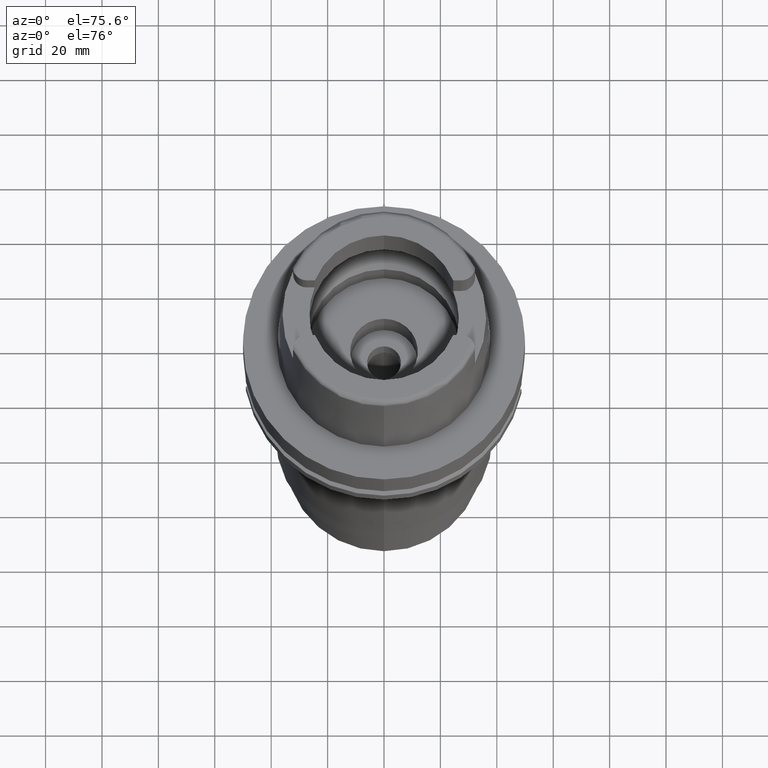
[diagram: clean part render]
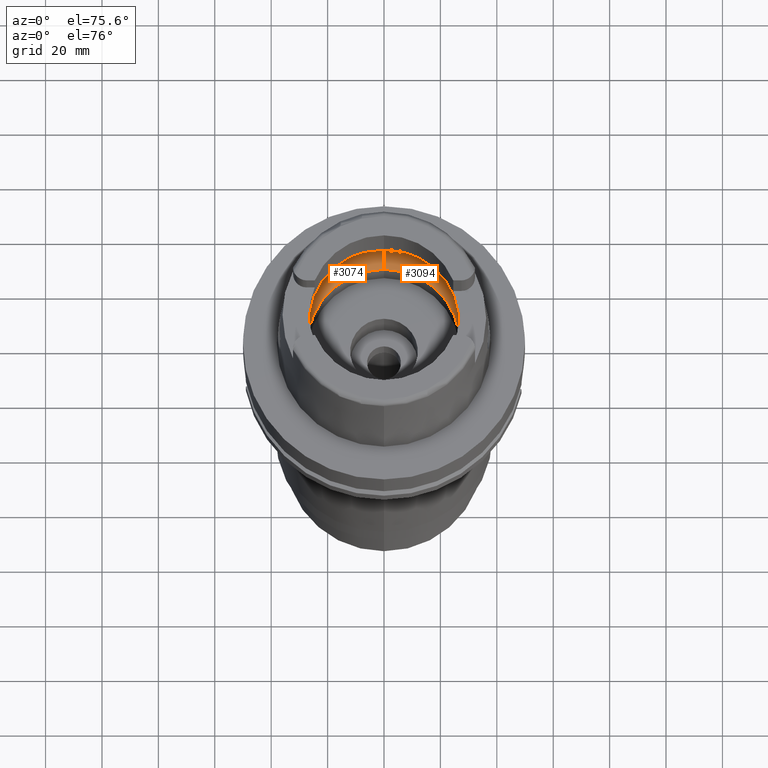
[diagram: same view with one multi-face feature highlighted, each face labeled with its STEP entity id]
A machine part, auxiliary view. The highlighted faces form ONE feature: a constant-radius fillet chain: 2 tangent blend faces with common blend radius 12 mm. The faces share edges in the B-rep.
Their STEP definitions:
[1] entity #3074 (Torus):
#580=CARTESIAN_POINT('',(-3.140918884336E1,-2.390158196044E0,9.496624327026E0));
#624=CARTESIAN_POINT('',(-3.140918884336E1,-2.390158196044E0,9.496624327026E0));
#625=CARTESIAN_POINT('',(-3.142817545704E1,-2.140654152533E0,9.388262810390E0));
#626=CARTESIAN_POINT('',(-3.145843235401E1,-1.626121130666E0,9.205188134635E0));
#627=CARTESIAN_POINT('',(-3.148416659375E1,-8.216262390445E-1,
9.037606438216E0));
#628=CARTESIAN_POINT('',(-3.148971910754E1,-2.740811097498E-1,9.E0));
#629=CARTESIAN_POINT('',(-3.148971910754E1,0.E0,9.E0));
#634=CARTESIAN_POINT('',(-3.148971910754E1,0.E0,9.E0));
#635=CARTESIAN_POINT('',(-3.148971910754E1,2.740813517952E-1,9.E0));
#636=CARTESIAN_POINT('',(-3.148416661469E1,8.216269012394E-1,9.037606318337E0));
#637=CARTESIAN_POINT('',(-3.145843209623E1,1.626127188331E0,9.205189758010E0));
#638=CARTESIAN_POINT('',(-3.142817526839E1,2.140656631637E0,9.388263887083E0));
#639=CARTESIAN_POINT('',(-3.140918884336E1,2.390158196044E0,9.496624327026E0));
#644=CARTESIAN_POINT('',(0.E0,0.E0,9.496624327026E0));
#645=DIRECTION('',(0.E0,0.E0,-1.E0));
#646=DIRECTION('',(-9.971171061384E-1,7.587803796965E-2,0.E0));
#647=AXIS2_PLACEMENT_3D('',#644,#645,#646);
#652=CARTESIAN_POINT('',(0.E0,0.E0,4.993178413026E-2));
#653=DIRECTION('',(0.E0,0.E0,1.E0));
#654=DIRECTION('',(0.E0,1.E0,0.E0));
#655=AXIS2_PLACEMENT_3D('',#652,#653,#654);
#660=CARTESIAN_POINT('',(0.E0,-1.95E1,9.496624327026E0));
#661=DIRECTION('',(-1.E0,0.E0,0.E0));
#662=DIRECTION('',(0.E0,-6.166666666667E-1,-7.872243785746E-1));
#663=AXIS2_PLACEMENT_3D('',#660,#661,#662);
#668=CARTESIAN_POINT('',(0.E0,0.E0,9.496624327026E0));
#669=DIRECTION('',(0.E0,0.E0,-1.E0));
#670=DIRECTION('',(0.E0,-1.E0,0.E0));
#671=AXIS2_PLACEMENT_3D('',#668,#669,#670);
#702=CARTESIAN_POINT('',(0.E0,1.95E1,9.496624327026E0));
#703=DIRECTION('',(1.E0,0.E0,0.E0));
#704=DIRECTION('',(0.E0,6.166666666667E-1,-7.872243785746E-1));
#705=AXIS2_PLACEMENT_3D('',#702,#703,#704);
#2416=VERTEX_POINT('',#580);
#2417=CARTESIAN_POINT('',(0.E0,-3.15E1,9.496624327026E0));
#2418=VERTEX_POINT('',#2417);
#2419=CARTESIAN_POINT('',(0.E0,3.15E1,9.496624327026E0));
#2420=VERTEX_POINT('',#2419);
#2421=CARTESIAN_POINT('',(-3.140918884336E1,2.390158196044E0,9.496624327026E0));
#2422=VERTEX_POINT('',#2421);
#2423=CARTESIAN_POINT('',(-3.148971910754E1,0.E0,9.E0));
#2424=VERTEX_POINT('',#2423);
#2429=CARTESIAN_POINT('',(0.E0,2.69E1,4.993178413025E-2));
#2430=VERTEX_POINT('',#2429);
#2431=CARTESIAN_POINT('',(0.E0,-2.69E1,4.993178413026E-2));
#2432=VERTEX_POINT('',#2431);
#3057=CARTESIAN_POINT('',(0.E0,0.E0,9.496624327026E0));
#3058=DIRECTION('',(0.E0,0.E0,1.E0));
#3059=DIRECTION('',(0.E0,1.E0,0.E0));
#3060=AXIS2_PLACEMENT_3D('',#3057,#3058,#3059);
#3061=TOROIDAL_SURFACE('',#3060,1.95E1,1.2E1);
#3062=ORIENTED_EDGE('',*,*,#3038,.T.);
#3063=ORIENTED_EDGE('',*,*,#3049,.T.);
#3064=ORIENTED_EDGE('',*,*,#3020,.T.);
#3066=ORIENTED_EDGE('',*,*,#3065,.F.);
#3068=ORIENTED_EDGE('',*,*,#3067,.T.);
#3070=ORIENTED_EDGE('',*,*,#3069,.T.);
#3071=ORIENTED_EDGE('',*,*,#3013,.T.);
#3072=EDGE_LOOP('',(#3062,#3063,#3064,#3066,#3068,#3070,#3071));
#3073=FACE_OUTER_BOUND('',#3072,.F.);
#630=B_SPLINE_CURVE_WITH_KNOTS('',3,(#624,#625,#626,#627,#628,#629),
.UNSPECIFIED.,.F.,.F.,(4,1,1,4),(0.E0,3.333333333333E-1,6.666666666667E-1,1.E0),
.UNSPECIFIED.);
#640=B_SPLINE_CURVE_WITH_KNOTS('',3,(#634,#635,#636,#637,#638,#639),
.UNSPECIFIED.,.F.,.F.,(4,1,1,4),(0.E0,3.333333333333E-1,6.666666666667E-1,1.E0),
.UNSPECIFIED.);
#648=CIRCLE('',#647,3.15E1);
#656=CIRCLE('',#655,2.69E1);
#664=CIRCLE('',#663,1.2E1);
#672=CIRCLE('',#671,3.15E1);
#706=CIRCLE('',#705,1.2E1);
#3013=EDGE_CURVE('',#2418,#2416,#672,.T.);
#3020=EDGE_CURVE('',#2422,#2420,#648,.T.);
#3038=EDGE_CURVE('',#2416,#2424,#630,.T.);
#3049=EDGE_CURVE('',#2424,#2422,#640,.T.);
#3065=EDGE_CURVE('',#2430,#2420,#706,.T.);
#3067=EDGE_CURVE('',#2430,#2432,#656,.T.);
#3069=EDGE_CURVE('',#2432,#2418,#664,.T.);
#3074=ADVANCED_FACE('',(#3073),#3061,.F.);
[2] entity #3094 (Torus):
#660=CARTESIAN_POINT('',(0.E0,-1.95E1,9.496624327026E0));
#661=DIRECTION('',(-1.E0,0.E0,0.E0));
#662=DIRECTION('',(0.E0,-6.166666666667E-1,-7.872243785746E-1));
#663=AXIS2_PLACEMENT_3D('',#660,#661,#662);
#676=CARTESIAN_POINT('',(3.148971910754E1,0.E0,9.E0));
#677=CARTESIAN_POINT('',(3.148971910754E1,-2.740816369241E-1,9.E0));
#678=CARTESIAN_POINT('',(3.148416657244E1,-8.216274657312E-1,9.037606582852E0));
#679=CARTESIAN_POINT('',(3.145843229729E1,-1.626122314408E0,9.205188491873E0));
#680=CARTESIAN_POINT('',(3.142817542026E1,-2.140654635827E0,9.388263020288E0));
#681=CARTESIAN_POINT('',(3.140918884336E1,-2.390158196044E0,9.496624327026E0));
#686=CARTESIAN_POINT('',(0.E0,0.E0,9.496624327026E0));
#687=DIRECTION('',(0.E0,0.E0,-1.E0));
#688=DIRECTION('',(9.971171061384E-1,-7.587803796965E-2,0.E0));
#689=AXIS2_PLACEMENT_3D('',#686,#687,#688);
#694=CARTESIAN_POINT('',(0.E0,0.E0,4.993178413025E-2));
#695=DIRECTION('',(0.E0,0.E0,1.E0));
#696=DIRECTION('',(0.E0,-1.E0,0.E0));
#697=AXIS2_PLACEMENT_3D('',#694,#695,#696);
#702=CARTESIAN_POINT('',(0.E0,1.95E1,9.496624327026E0));
#703=DIRECTION('',(1.E0,0.E0,0.E0));
#704=DIRECTION('',(0.E0,6.166666666667E-1,-7.872243785746E-1));
#705=AXIS2_PLACEMENT_3D('',#702,#703,#704);
#710=CARTESIAN_POINT('',(0.E0,0.E0,9.496624327026E0));
#711=DIRECTION('',(0.E0,0.E0,-1.E0));
#712=DIRECTION('',(0.E0,1.E0,0.E0));
#713=AXIS2_PLACEMENT_3D('',#710,#711,#712);
#718=CARTESIAN_POINT('',(3.140918884336E1,2.390158196044E0,9.496624327026E0));
#719=CARTESIAN_POINT('',(3.142817530553E1,2.140656143518E0,9.388263675090E0));
#720=CARTESIAN_POINT('',(3.145843215351E1,1.626125992770E0,9.205189397203E0));
#721=CARTESIAN_POINT('',(3.148416663622E1,8.216256622719E-1,9.037606172252E0));
#722=CARTESIAN_POINT('',(3.148971910754E1,2.740808193429E-1,9.E0));
#723=CARTESIAN_POINT('',(3.148971910754E1,0.E0,9.E0));
#735=CARTESIAN_POINT('',(3.140918884336E1,-2.390158196044E0,9.496624327026E0));
#766=CARTESIAN_POINT('',(3.140918884336E1,2.390158196044E0,9.496624327026E0));
#2417=CARTESIAN_POINT('',(0.E0,-3.15E1,9.496624327026E0));
#2418=VERTEX_POINT('',#2417);
#2419=CARTESIAN_POINT('',(0.E0,3.15E1,9.496624327026E0));
#2420=VERTEX_POINT('',#2419);
#2425=VERTEX_POINT('',#735);
#2427=VERTEX_POINT('',#676);
#2428=VERTEX_POINT('',#766);
#2429=CARTESIAN_POINT('',(0.E0,2.69E1,4.993178413025E-2));
#2430=VERTEX_POINT('',#2429);
#2431=CARTESIAN_POINT('',(0.E0,-2.69E1,4.993178413026E-2));
#2432=VERTEX_POINT('',#2431);
#3075=CARTESIAN_POINT('',(0.E0,0.E0,9.496624327026E0));
#3076=DIRECTION('',(0.E0,0.E0,1.E0));
#3077=DIRECTION('',(0.E0,1.E0,0.E0));
#3078=AXIS2_PLACEMENT_3D('',#3075,#3076,#3077);
#3079=TOROIDAL_SURFACE('',#3078,1.95E1,1.2E1);
#3081=ORIENTED_EDGE('',*,*,#3080,.T.);
#3083=ORIENTED_EDGE('',*,*,#3082,.T.);
#3084=ORIENTED_EDGE('',*,*,#3069,.F.);
#3086=ORIENTED_EDGE('',*,*,#3085,.T.);
#3087=ORIENTED_EDGE('',*,*,#3065,.T.);
#3089=ORIENTED_EDGE('',*,*,#3088,.T.);
#3091=ORIENTED_EDGE('',*,*,#3090,.T.);
#3092=EDGE_LOOP('',(#3081,#3083,#3084,#3086,#3087,#3089,#3091));
#3093=FACE_OUTER_BOUND('',#3092,.F.);
#664=CIRCLE('',#663,1.2E1);
#682=B_SPLINE_CURVE_WITH_KNOTS('',3,(#676,#677,#678,#679,#680,#681),
.UNSPECIFIED.,.F.,.F.,(4,1,1,4),(0.E0,3.333333333333E-1,6.666666666667E-1,1.E0),
.UNSPECIFIED.);
#690=CIRCLE('',#689,3.15E1);
#698=CIRCLE('',#697,2.69E1);
#706=CIRCLE('',#705,1.2E1);
#714=CIRCLE('',#713,3.15E1);
#724=B_SPLINE_CURVE_WITH_KNOTS('',3,(#718,#719,#720,#721,#722,#723),
.UNSPECIFIED.,.F.,.F.,(4,1,1,4),(0.E0,3.333333333333E-1,6.666666666667E-1,1.E0),
.UNSPECIFIED.);
#3065=EDGE_CURVE('',#2430,#2420,#706,.T.);
#3069=EDGE_CURVE('',#2432,#2418,#664,.T.);
#3080=EDGE_CURVE('',#2427,#2425,#682,.T.);
#3082=EDGE_CURVE('',#2425,#2418,#690,.T.);
#3085=EDGE_CURVE('',#2432,#2430,#698,.T.);
#3088=EDGE_CURVE('',#2420,#2428,#714,.T.);
#3090=EDGE_CURVE('',#2428,#2427,#724,.T.);
#3094=ADVANCED_FACE('',(#3093),#3079,.F.);